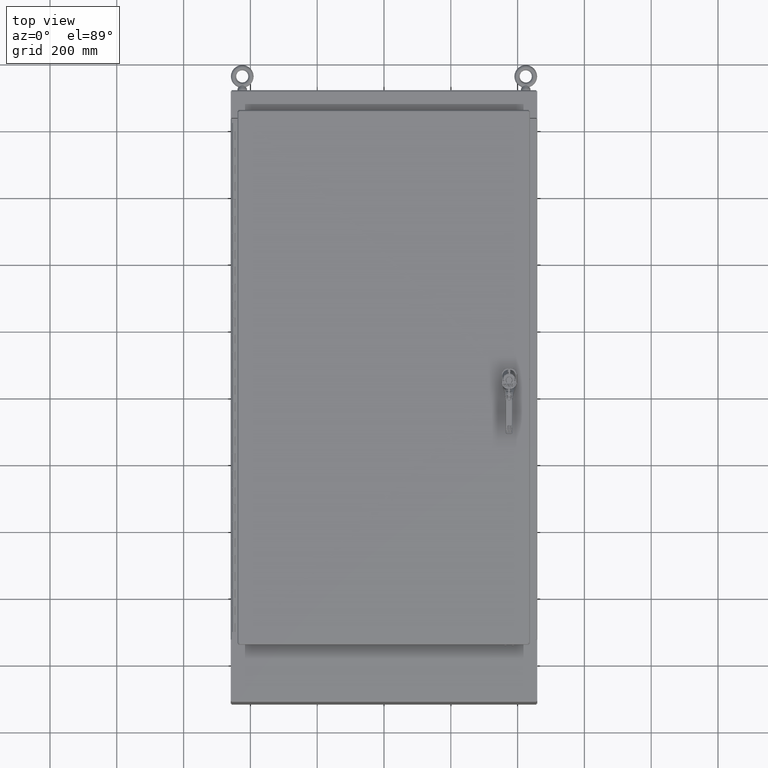
[diagram: clean part render]
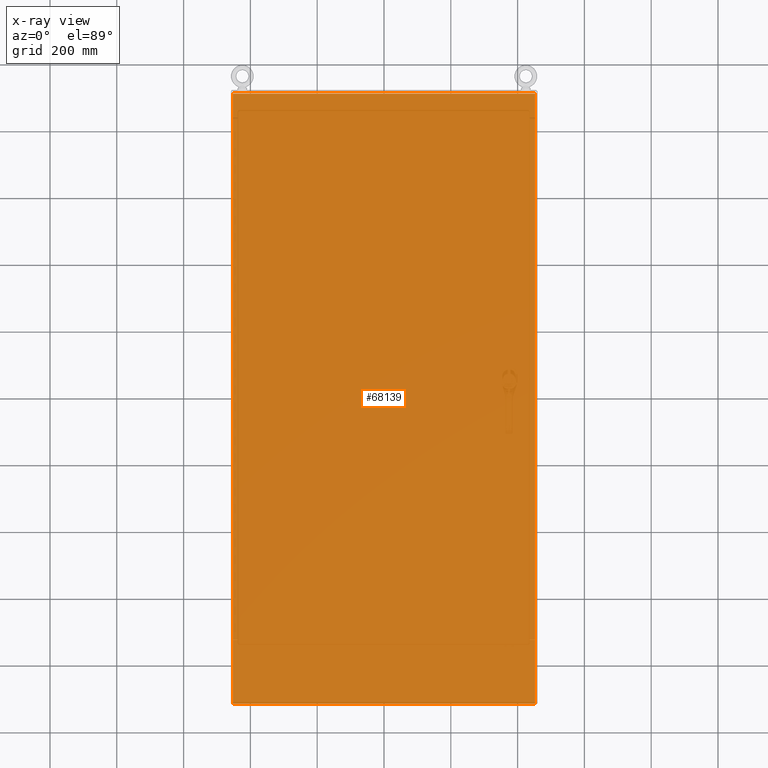
[diagram: x-ray — body ghosted, one internal face saturated and labeled with its STEP entity id]
A machine part, top view, then the same camera in x-ray: the body is ghosted and one INTERNAL B-rep face — a face not visible from any outside direction — is saturated and labeled: STEP entity #68139.
In plain terms, the highlighted planar face has unit normal (0, 0, 1).
Its self-contained STEP definition (entity closure, byte-faithful):
#9236=PLANE('',#71948);
#10408=FACE_OUTER_BOUND('',#13356,.T.);
#13356=EDGE_LOOP('',(#50421,#50422,#50423,#50424));
#20095=LINE('',#96386,#25213);
#20101=LINE('',#96406,#25219);
#20103=LINE('',#96409,#25221);
#20105=LINE('',#96413,#25223);
#25213=VECTOR('',#78514,0.393700787401575);
#25219=VECTOR('',#78540,0.393700787401575);
#25221=VECTOR('',#78544,0.393700787401575);
#25223=VECTOR('',#78550,0.393700787401575);
#30292=VERTEX_POINT('',#96377);
#30293=VERTEX_POINT('',#96381);
#30296=VERTEX_POINT('',#96397);
#30297=VERTEX_POINT('',#96401);
#39616=EDGE_CURVE('',#30292,#30293,#20095,.T.);
#39626=EDGE_CURVE('',#30296,#30297,#20101,.T.);
#39628=EDGE_CURVE('',#30296,#30293,#20103,.T.);
#39630=EDGE_CURVE('',#30292,#30297,#20105,.T.);
#50421=ORIENTED_EDGE('',*,*,#39616,.T.);
#50422=ORIENTED_EDGE('',*,*,#39628,.F.);
#50423=ORIENTED_EDGE('',*,*,#39626,.T.);
#50424=ORIENTED_EDGE('',*,*,#39630,.F.);
#68139=ADVANCED_FACE('',(#10408),#9236,.T.);
#71948=AXIS2_PLACEMENT_3D('',#96414,#78551,#78552);
#78514=DIRECTION('',(1.55591159003418E-16,1.,0.));
#78540=DIRECTION('',(-7.77955795017091E-17,-1.,0.));
#78544=DIRECTION('',(1.,-3.09748079779898E-16,0.));
#78550=DIRECTION('',(-1.,1.54874039889949E-16,0.));
#78551=DIRECTION('center_axis',(0.,0.,1.));
#78552=DIRECTION('ref_axis',(1.,0.,0.));
#96377=CARTESIAN_POINT('',(17.817875,-35.9585,0.104));
#96381=CARTESIAN_POINT('',(17.817875,35.9585,0.104));
#96386=CARTESIAN_POINT('',(17.817875,17.97925,0.104));
#96397=CARTESIAN_POINT('',(-17.817875,35.9585,0.104));
#96401=CARTESIAN_POINT('',(-17.817875,-35.9585,0.104));
#96406=CARTESIAN_POINT('',(-17.817875,-17.97925,0.104));
#96409=CARTESIAN_POINT('',(-18.0625,35.9585,0.104));
#96413=CARTESIAN_POINT('',(18.0625,-35.9585,0.104));
#96414=CARTESIAN_POINT('Origin',(2.79741234551221E-15,-4.78428356020646E-15,
0.104));